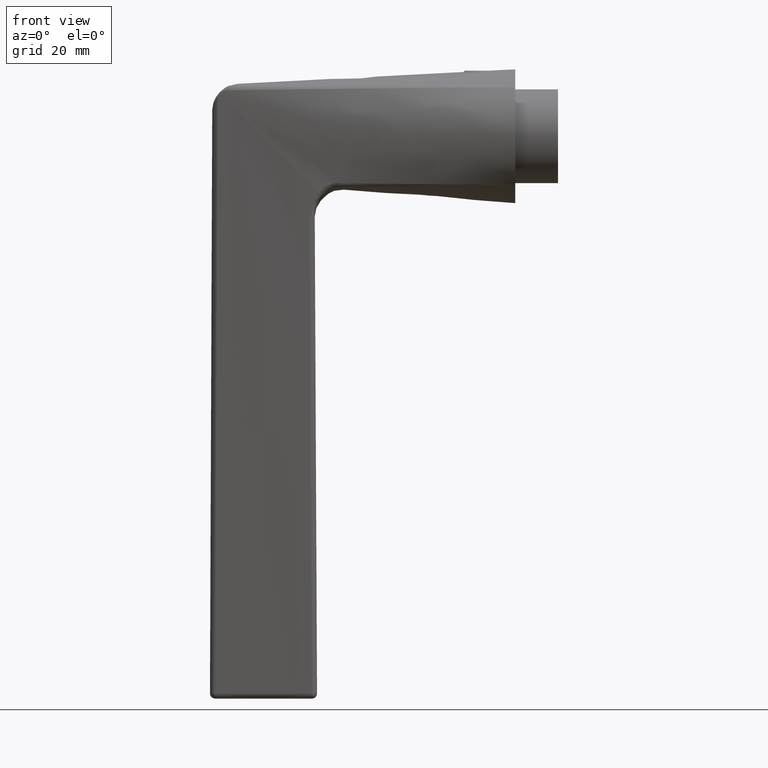
[diagram: clean part render]
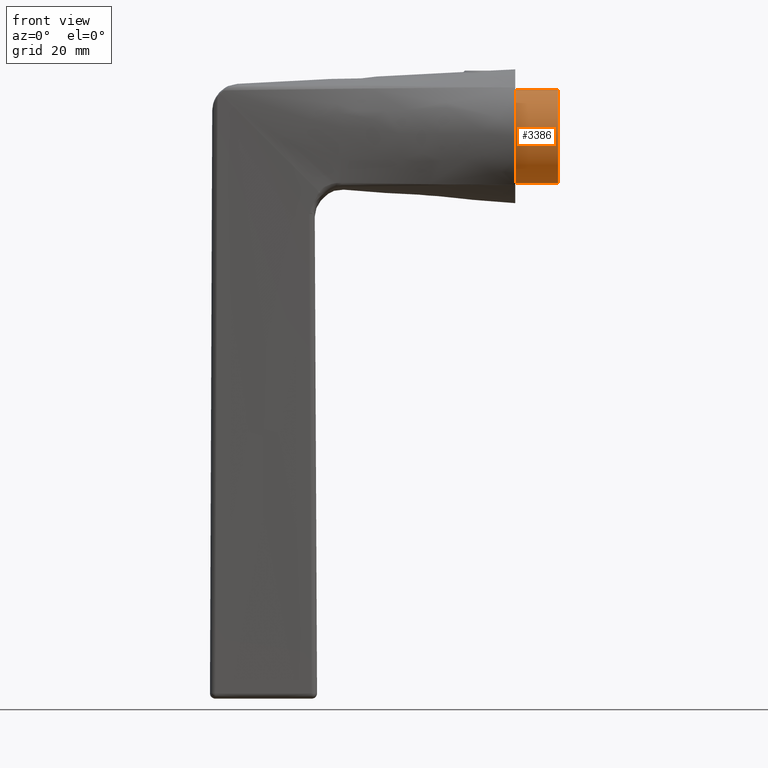
[diagram: same view with one face highlighted and labeled with its STEP entity id]
A machine part, front view. The second image highlights one B-rep face of the part: STEP entity #3386.
In plain terms, the highlighted cylindrical surface (bore or boss wall) has radius 8.75 mm, axis along (1, -0, -0).
Its self-contained STEP definition (entity closure, byte-faithful):
#817 = DIRECTION ( 'NONE',  ( 1.000000000000000000, 2.751328491981765993E-33, 0.000000000000000000 ) ) ;
#1998 = EDGE_CURVE ( 'NONE', #2707, #2707, #12679, .T. ) ;
#2245 = ORIENTED_EDGE ( 'NONE', *, *, #5500, .F. ) ;
#2388 = FACE_OUTER_BOUND ( 'NONE', #11775, .T. ) ;
#2707 = VERTEX_POINT ( 'NONE', #11901 ) ;
#2847 = CARTESIAN_POINT ( 'NONE',  ( 0.000000000000000000, 0.000000000000000000, 0.000000000000000000 ) ) ;
#3386 = ADVANCED_FACE ( 'NONE', ( #12614, #2388 ), #7335, .T. ) ;
#3854 = DIRECTION ( 'NONE',  ( -4.930380657631324879E-32, 6.938893903907223755E-18, 1.000000000000000000 ) ) ;
#4142 = AXIS2_PLACEMENT_3D ( 'NONE', #12728, #6730, #817 ) ;
#4844 = CIRCLE ( 'NONE', #4142, 8.749999999999998224 ) ;
#5083 = DIRECTION ( 'NONE',  ( -1.000000000000000000, -2.751328491981765993E-33, 0.000000000000000000 ) ) ;
#5500 = EDGE_CURVE ( 'NONE', #9677, #9677, #4844, .T. ) ;
#6730 = DIRECTION ( 'NONE',  ( -4.930380657631324879E-32, 6.938893903907223755E-18, 1.000000000000000000 ) ) ;
#7335 = CYLINDRICAL_SURFACE ( 'NONE', #11047, 8.749999999999998224 ) ;
#7363 = ORIENTED_EDGE ( 'NONE', *, *, #1998, .T. ) ;
#7450 = AXIS2_PLACEMENT_3D ( 'NONE', #2847, #3854, #10776 ) ;
#8033 = DIRECTION ( 'NONE',  ( 4.930380657631324879E-32, -6.938893903907223755E-18, -1.000000000000000000 ) ) ;
#8841 = CARTESIAN_POINT ( 'NONE',  ( -3.972230510298673947E-31, 5.551115123125777772E-17, 7.999999999999996447 ) ) ;
#9677 = VERTEX_POINT ( 'NONE', #12845 ) ;
#10452 = EDGE_LOOP ( 'NONE', ( #2245 ) ) ;
#10776 = DIRECTION ( 'NONE',  ( 1.000000000000000000, 2.118522938825960465E-33, -4.930380657631325973E-32 ) ) ;
#11047 = AXIS2_PLACEMENT_3D ( 'NONE', #8841, #8033, #5083 ) ;
#11775 = EDGE_LOOP ( 'NONE', ( #7363 ) ) ;
#11901 = CARTESIAN_POINT ( 'NONE',  ( 8.749999999999998224, 1.853707571472715056E-32, -4.314083075427409187E-31 ) ) ;
#12614 = FACE_OUTER_BOUND ( 'NONE', #10452, .T. ) ;
#12679 = CIRCLE ( 'NONE', #7450, 8.749999999999998224 ) ;
#12728 = CARTESIAN_POINT ( 'NONE',  ( -3.972230510298673947E-31, 5.551115123125777772E-17, 7.999999999999996447 ) ) ;
#12845 = CARTESIAN_POINT ( 'NONE',  ( 8.749999999999998224, 5.551115123125780237E-17, 7.999999999999996447 ) ) ;